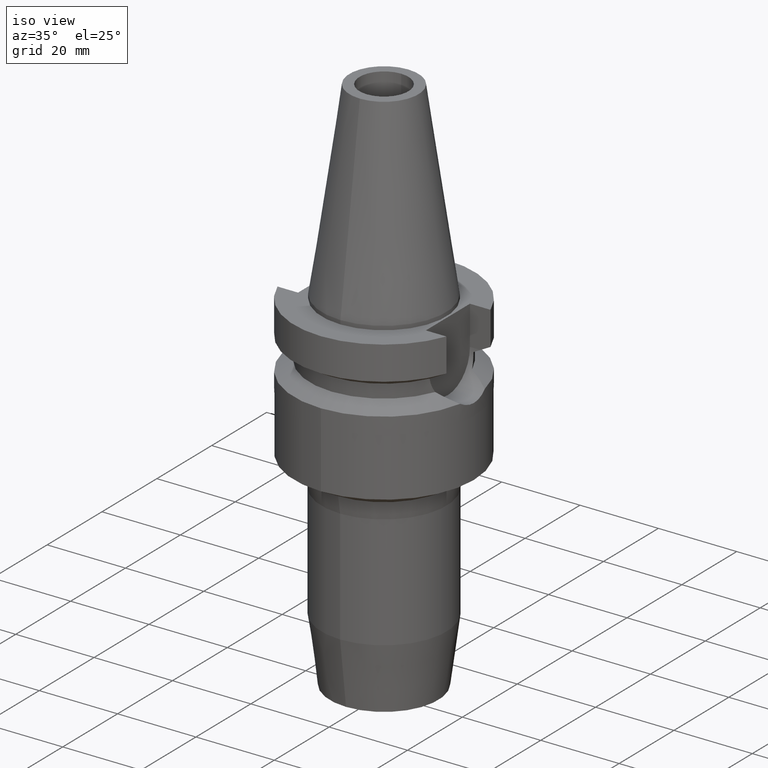
[diagram: clean part render]
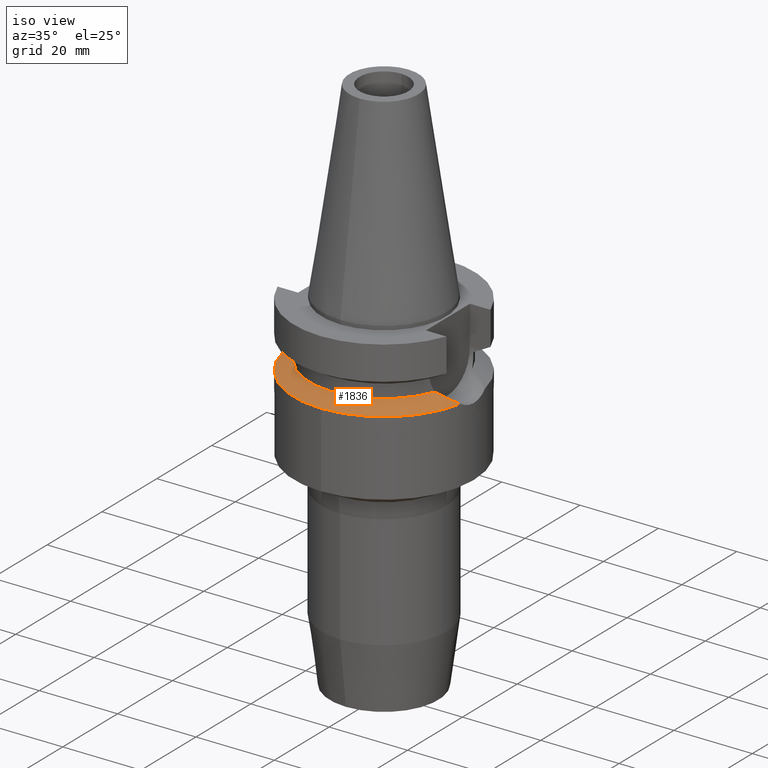
[diagram: same view with one face highlighted and labeled with its STEP entity id]
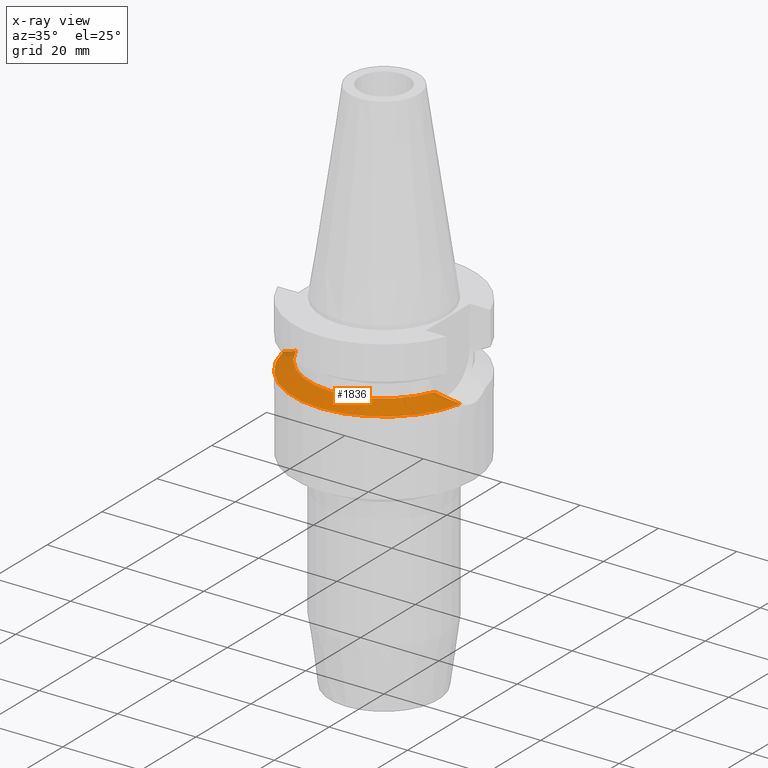
[diagram: x-ray of the same camera — body ghosted, the highlighted face saturated]
A machine part, iso view. The second image highlights one B-rep face of the part: STEP entity #1836.
The next image is the same camera in x-ray: the body ghosted, the highlighted face saturated — about 2% of this face is hidden behind the body in this view.
In plain terms, the highlighted conical surface has half-angle 60 deg.
Its self-contained STEP definition (entity closure, byte-faithful):
#552=CARTESIAN_POINT('',(2.255786346208E1,-4.488072640470E0,-1.763279163029E1));
#593=CARTESIAN_POINT('',(-2.255786346208E1,-4.488072640470E0,
-1.763279163029E1));
#594=CARTESIAN_POINT('',(-2.211703888610E1,-4.806362256348E0,
-1.741903262121E1));
#595=CARTESIAN_POINT('',(-2.125272336137E1,-5.336053146235E0,
-1.700064596033E1));
#596=CARTESIAN_POINT('',(-2.003672423087E1,-5.924815250686E0,
-1.641446843211E1));
#597=CARTESIAN_POINT('',(-1.904818302751E1,-6.328454349743E0,
-1.593971548531E1));
#598=CARTESIAN_POINT('',(-1.820058517359E1,-6.621793335142E0,
-1.553449325955E1));
#599=CARTESIAN_POINT('',(-1.775736593456E1,-6.758398853744E0,
-1.532339055353E1));
#604=CARTESIAN_POINT('',(0.E0,1.022848384030E-14,-1.532339055353E1));
#605=DIRECTION('',(0.E0,0.E0,1.E0));
#606=DIRECTION('',(-9.345982070819E-1,-3.557052028286E-1,0.E0));
#607=AXIS2_PLACEMENT_3D('',#604,#605,#606);
#612=CARTESIAN_POINT('',(0.E0,1.022848384030E-14,-1.532339055353E1));
#613=DIRECTION('',(0.E0,0.E0,1.E0));
#614=DIRECTION('',(0.E0,-1.E0,0.E0));
#615=AXIS2_PLACEMENT_3D('',#612,#613,#614);
#620=CARTESIAN_POINT('',(1.775736593456E1,-6.758398853744E0,-1.532339055353E1));
#621=CARTESIAN_POINT('',(1.832259982923E1,-6.584186945701E0,-1.559260811945E1));
#622=CARTESIAN_POINT('',(1.943949089725E1,-6.196179600573E0,-1.612686422902E1));
#623=CARTESIAN_POINT('',(2.115783799922E1,-5.402701689726E0,-1.695457859730E1));
#624=CARTESIAN_POINT('',(2.211338779527E1,-4.808998462132E0,-1.741726218100E1));
#625=CARTESIAN_POINT('',(2.255786346208E1,-4.488072640470E0,-1.763279163029E1));
#630=CARTESIAN_POINT('',(0.E0,1.022848384030E-14,-1.763279163029E1));
#631=DIRECTION('',(0.E0,0.E0,-1.E0));
#632=DIRECTION('',(9.807766722644E-1,-1.951335930639E-1,0.E0));
#633=AXIS2_PLACEMENT_3D('',#630,#631,#632);
#638=CARTESIAN_POINT('',(0.E0,1.022848384030E-14,-1.763279163029E1));
#639=DIRECTION('',(0.E0,0.E0,-1.E0));
#640=DIRECTION('',(0.E0,-1.E0,0.E0));
#641=AXIS2_PLACEMENT_3D('',#638,#639,#640);
#1200=VERTEX_POINT('',#552);
#1203=CARTESIAN_POINT('',(0.E0,-2.3E1,-1.763279163029E1));
#1204=VERTEX_POINT('',#1203);
#1205=VERTEX_POINT('',#620);
#1218=VERTEX_POINT('',#593);
#1219=VERTEX_POINT('',#599);
#1220=CARTESIAN_POINT('',(0.E0,-1.9E1,-1.532339055353E1));
#1221=VERTEX_POINT('',#1220);
#1819=CARTESIAN_POINT('',(0.E0,1.022848384030E-14,-1.647809109191E1));
#1820=DIRECTION('',(0.E0,0.E0,-1.E0));
#1821=DIRECTION('',(0.E0,-1.E0,0.E0));
#1822=AXIS2_PLACEMENT_3D('',#1819,#1820,#1821);
#1823=CONICAL_SURFACE('',#1822,2.1E1,6.E1);
#1825=ORIENTED_EDGE('',*,*,#1824,.T.);
#1827=ORIENTED_EDGE('',*,*,#1826,.T.);
#1829=ORIENTED_EDGE('',*,*,#1828,.T.);
#1830=ORIENTED_EDGE('',*,*,#1796,.T.);
#1831=ORIENTED_EDGE('',*,*,#1784,.T.);
#1833=ORIENTED_EDGE('',*,*,#1832,.T.);
#1834=EDGE_LOOP('',(#1825,#1827,#1829,#1830,#1831,#1833));
#1835=FACE_OUTER_BOUND('',#1834,.F.);
#600=B_SPLINE_CURVE_WITH_KNOTS('',3,(#593,#594,#595,#596,#597,#598,#599),
.UNSPECIFIED.,.F.,.F.,(4,1,1,1,4),(0.E0,2.5E-1,5.E-1,7.5E-1,1.E0),
.UNSPECIFIED.);
#608=CIRCLE('',#607,1.9E1);
#616=CIRCLE('',#615,1.9E1);
#626=B_SPLINE_CURVE_WITH_KNOTS('',3,(#620,#621,#622,#623,#624,#625),
.UNSPECIFIED.,.F.,.F.,(4,1,1,4),(0.E0,3.333333333333E-1,6.666666666667E-1,1.E0),
.UNSPECIFIED.);
#634=CIRCLE('',#633,2.3E1);
#642=CIRCLE('',#641,2.3E1);
#1784=EDGE_CURVE('',#1200,#1204,#634,.T.);
#1796=EDGE_CURVE('',#1205,#1200,#626,.T.);
#1824=EDGE_CURVE('',#1218,#1219,#600,.T.);
#1826=EDGE_CURVE('',#1219,#1221,#608,.T.);
#1828=EDGE_CURVE('',#1221,#1205,#616,.T.);
#1832=EDGE_CURVE('',#1204,#1218,#642,.T.);
#1836=ADVANCED_FACE('',(#1835),#1823,.T.);